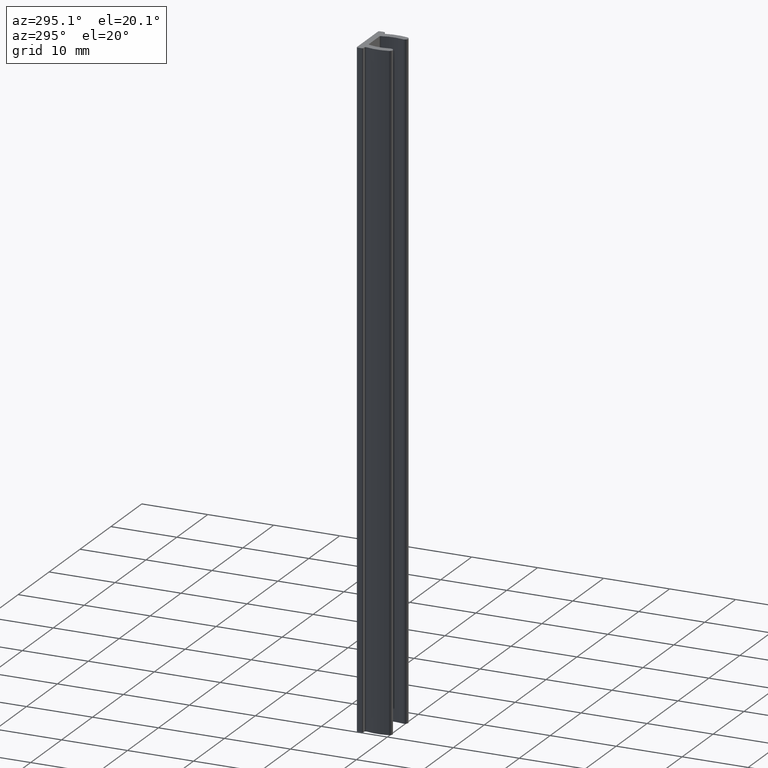
[diagram: clean part render]
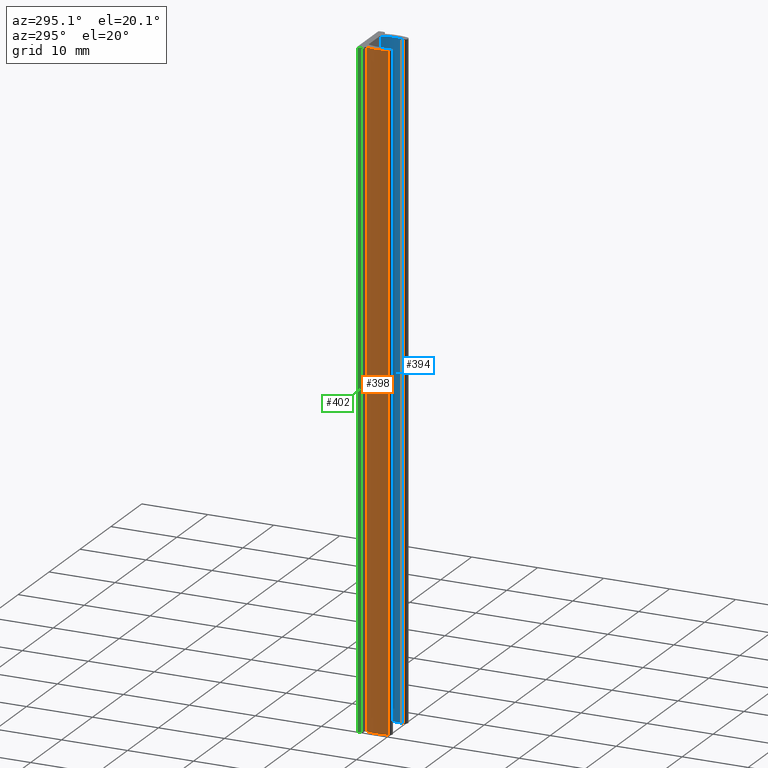
[diagram: same view with three faces highlighted in distinct colors, each labeled with its STEP entity id]
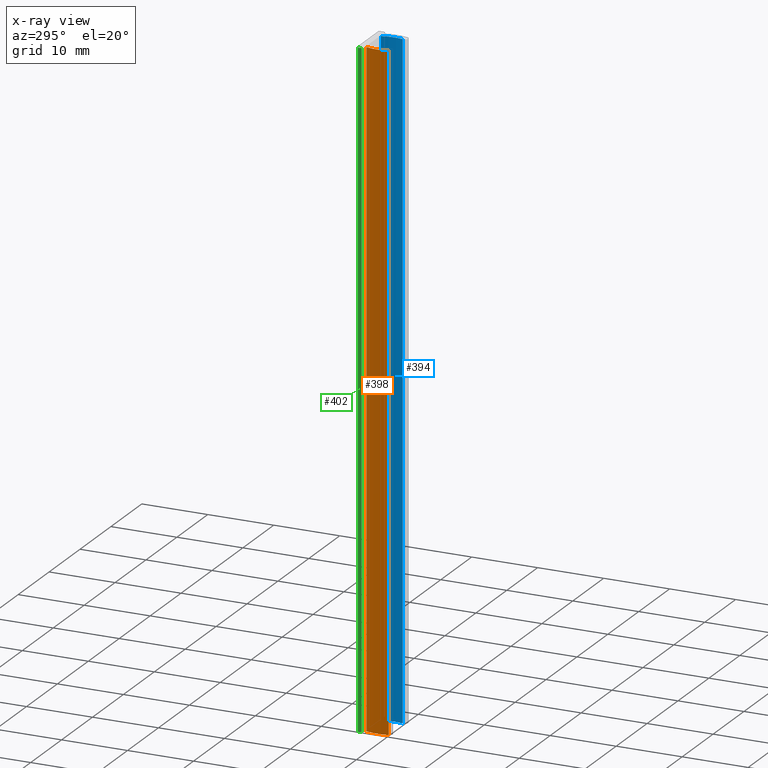
[diagram: x-ray of the same camera — body ghosted, the three highlighted faces saturated]
A machine part, auxiliary view with three faces highlighted in distinct colors.
The next image is the same camera in x-ray (body ghosted, the three faces saturated) — at least one of them is partly hidden behind the body in this view.
Their STEP definitions:

[orange] entity #398 — the highlighted cylindrical surface (partial cylindrical patch) has radius 6.8 mm, axis along (0, 0, 1).
#28=FACE_OUTER_BOUND('',#50,.T.);
#50=EDGE_LOOP('',(#279,#280,#281,#282));
#74=LINE('',#652,#106);
#76=LINE('',#660,#108);
#106=VECTOR('',#518,10.);
#108=VECTOR('',#526,10.);
#139=CIRCLE('',#449,6.8);
#140=CIRCLE('',#450,6.8);
#170=VERTEX_POINT('',#649);
#171=VERTEX_POINT('',#651);
#173=VERTEX_POINT('',#657);
#174=VERTEX_POINT('',#659);
#213=EDGE_CURVE('',#170,#171,#74,.T.);
#216=EDGE_CURVE('',#173,#170,#139,.T.);
#217=EDGE_CURVE('',#173,#174,#76,.T.);
#218=EDGE_CURVE('',#171,#174,#140,.T.);
#279=ORIENTED_EDGE('',*,*,#213,.F.);
#280=ORIENTED_EDGE('',*,*,#216,.F.);
#281=ORIENTED_EDGE('',*,*,#217,.T.);
#282=ORIENTED_EDGE('',*,*,#218,.F.);
#383=CYLINDRICAL_SURFACE('',#448,6.8);
#398=ADVANCED_FACE('',(#28),#383,.T.);
#448=AXIS2_PLACEMENT_3D('',#656,#522,#523);
#449=AXIS2_PLACEMENT_3D('',#658,#524,#525);
#450=AXIS2_PLACEMENT_3D('',#661,#527,#528);
#518=DIRECTION('',(0.,0.,1.));
#522=DIRECTION('center_axis',(0.,0.,1.));
#523=DIRECTION('ref_axis',(0.955769224074819,-0.294117647058824,0.));
#524=DIRECTION('center_axis',(0.,0.,-1.));
#525=DIRECTION('ref_axis',(0.955769224074819,-0.294117647058824,0.));
#526=DIRECTION('',(0.,0.,1.));
#527=DIRECTION('center_axis',(0.,0.,1.));
#528=DIRECTION('ref_axis',(0.955769224074819,-0.294117647058824,0.));
#649=CARTESIAN_POINT('',(-2.9713391298261,1.74857142857143,0.));
#651=CARTESIAN_POINT('',(-2.9713391298261,1.74857142857143,100.));
#652=CARTESIAN_POINT('',(-2.9713391298261,1.74857142857143,0.));
#656=CARTESIAN_POINT('Origin',(3.6,-5.51884416470703E-23,0.));
#657=CARTESIAN_POINT('',(-3.0044443223678,-1.61904761904762,0.));
#658=CARTESIAN_POINT('Origin',(3.6,-5.51884416470703E-23,0.));
#659=CARTESIAN_POINT('',(-3.0044443223678,-1.61904761904762,100.));
#660=CARTESIAN_POINT('',(-3.0044443223678,-1.61904761904762,0.));
#661=CARTESIAN_POINT('Origin',(3.6,-5.51884416470703E-23,100.));

[blue] entity #394 — the highlighted cylindrical surface (partial cylindrical patch) has radius 5.8 mm, axis along (0, 0, 1).
#24=FACE_OUTER_BOUND('',#46,.T.);
#46=EDGE_LOOP('',(#263,#264,#265,#266));
#67=LINE('',#625,#99);
#69=LINE('',#633,#101);
#99=VECTOR('',#491,10.);
#101=VECTOR('',#499,10.);
#133=CIRCLE('',#439,5.8);
#134=CIRCLE('',#440,5.8);
#160=VERTEX_POINT('',#622);
#161=VERTEX_POINT('',#624);
#163=VERTEX_POINT('',#630);
#164=VERTEX_POINT('',#632);
#200=EDGE_CURVE('',#160,#161,#67,.T.);
#203=EDGE_CURVE('',#163,#160,#133,.T.);
#204=EDGE_CURVE('',#163,#164,#69,.T.);
#205=EDGE_CURVE('',#161,#164,#134,.T.);
#263=ORIENTED_EDGE('',*,*,#200,.F.);
#264=ORIENTED_EDGE('',*,*,#203,.F.);
#265=ORIENTED_EDGE('',*,*,#204,.T.);
#266=ORIENTED_EDGE('',*,*,#205,.F.);
#380=CYLINDRICAL_SURFACE('',#438,5.8);
#394=ADVANCED_FACE('',(#24),#380,.F.);
#438=AXIS2_PLACEMENT_3D('',#629,#495,#496);
#439=AXIS2_PLACEMENT_3D('',#631,#497,#498);
#440=AXIS2_PLACEMENT_3D('',#634,#500,#501);
#491=DIRECTION('',(0.,0.,1.));
#495=DIRECTION('center_axis',(0.,0.,1.));
#496=DIRECTION('ref_axis',(0.971241812112912,-0.238095238095235,0.));
#497=DIRECTION('center_axis',(0.,0.,1.));
#498=DIRECTION('ref_axis',(0.971241812112912,-0.238095238095235,0.));
#499=DIRECTION('',(0.,0.,1.));
#500=DIRECTION('center_axis',(0.,0.,-1.));
#501=DIRECTION('ref_axis',(0.971241812112912,-0.238095238095235,0.));
#622=CARTESIAN_POINT('',(1.89221619890461,1.86428571428572,0.));
#624=CARTESIAN_POINT('',(1.89221619890461,1.86428571428572,100.));
#625=CARTESIAN_POINT('',(1.89221619890461,1.86428571428571,0.));
#629=CARTESIAN_POINT('Origin',(-3.59999999999999,-1.99719923501564E-14,
0.));
#630=CARTESIAN_POINT('',(2.0332025102549,-1.38095238095238,0.));
#631=CARTESIAN_POINT('Origin',(-3.59999999999999,-1.99719923501564E-14,
0.));
#632=CARTESIAN_POINT('',(2.0332025102549,-1.38095238095238,100.));
#633=CARTESIAN_POINT('',(2.0332025102549,-1.38095238095238,0.));
#634=CARTESIAN_POINT('Origin',(-3.59999999999999,-1.99719923501564E-14,
100.));

[green] entity #402 — the highlighted planar face has unit normal (-1, 0, 0).
#17=PLANE('',#458);
#32=FACE_OUTER_BOUND('',#54,.T.);
#54=EDGE_LOOP('',(#295,#296,#297,#298));
#82=LINE('',#682,#114);
#84=LINE('',#688,#116);
#85=LINE('',#690,#117);
#86=LINE('',#691,#118);
#114=VECTOR('',#546,10.);
#116=VECTOR('',#552,10.);
#117=VECTOR('',#553,10.);
#118=VECTOR('',#554,10.);
#182=VERTEX_POINT('',#679);
#183=VERTEX_POINT('',#681);
#185=VERTEX_POINT('',#687);
#186=VERTEX_POINT('',#689);
#227=EDGE_CURVE('',#182,#183,#82,.T.);
#230=EDGE_CURVE('',#185,#182,#84,.T.);
#231=EDGE_CURVE('',#186,#185,#85,.T.);
#232=EDGE_CURVE('',#183,#186,#86,.T.);
#295=ORIENTED_EDGE('',*,*,#227,.F.);
#296=ORIENTED_EDGE('',*,*,#230,.F.);
#297=ORIENTED_EDGE('',*,*,#231,.F.);
#298=ORIENTED_EDGE('',*,*,#232,.F.);
#402=ADVANCED_FACE('',(#32),#17,.T.);
#458=AXIS2_PLACEMENT_3D('',#686,#550,#551);
#546=DIRECTION('',(0.,0.,-1.));
#550=DIRECTION('center_axis',(-1.,0.,0.));
#551=DIRECTION('ref_axis',(0.,-1.,0.));
#552=DIRECTION('',(0.,-1.,0.));
#553=DIRECTION('',(0.,0.,1.));
#554=DIRECTION('',(0.,1.,0.));
#679=CARTESIAN_POINT('',(-3.6,2.2,100.));
#681=CARTESIAN_POINT('',(-3.6,2.2,0.));
#682=CARTESIAN_POINT('',(-3.6,2.2,0.));
#686=CARTESIAN_POINT('Origin',(-3.6,3.,0.));
#687=CARTESIAN_POINT('',(-3.6,2.8,100.));
#688=CARTESIAN_POINT('',(-3.6,2.,100.));
#689=CARTESIAN_POINT('',(-3.6,2.8,0.));
#690=CARTESIAN_POINT('',(-3.6,2.8,0.));
#691=CARTESIAN_POINT('',(-3.6,2.,0.));